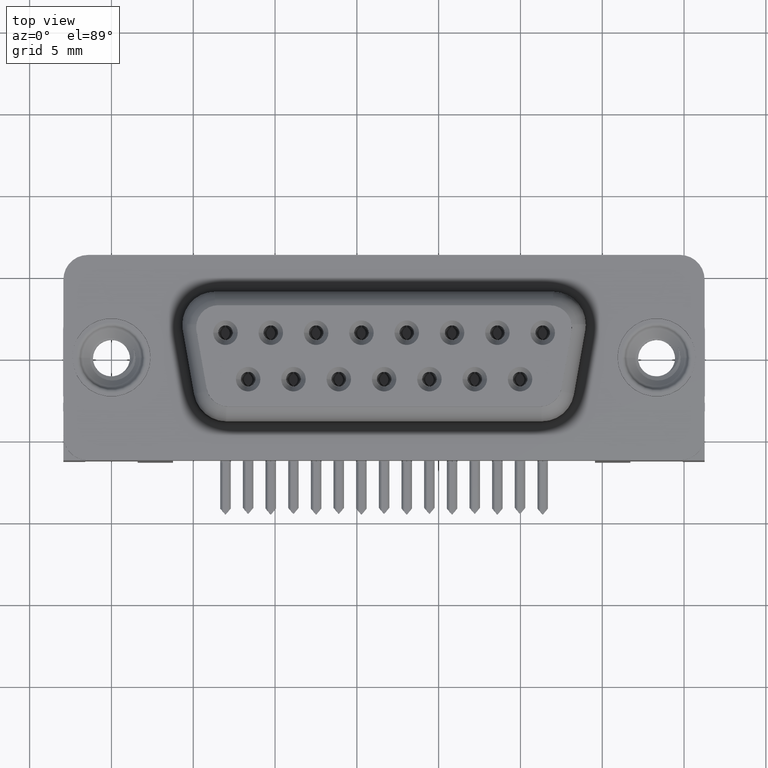
[diagram: clean part render]
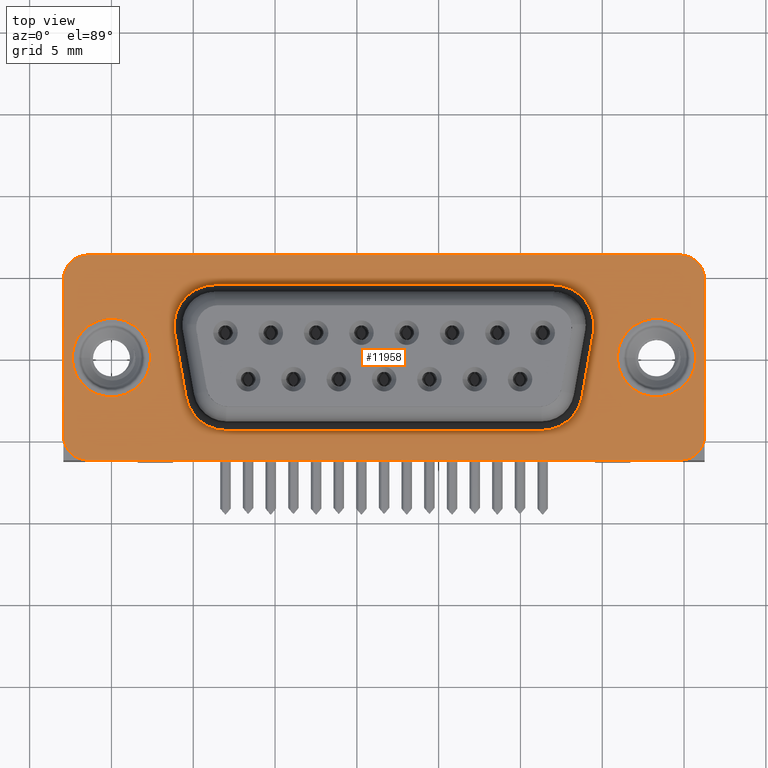
[diagram: same view with one face highlighted and labeled with its STEP entity id]
A machine part, top view. The second image highlights one B-rep face of the part: STEP entity #11958.
In plain terms, the highlighted planar face has unit normal (0, 0, 1).
Its self-contained STEP definition (entity closure, byte-faithful):
#117 = ORIENTED_EDGE ( 'NONE', *, *, #17781, .T. ) ;
#285 = EDGE_CURVE ( 'NONE', #12787, #20505, #21071, .T. ) ;
#343 = DIRECTION ( 'NONE',  ( 0.0000000000000000000, 0.0000000000000000000, 1.000000000000000000 ) ) ;
#436 = EDGE_CURVE ( 'NONE', #16911, #6163, #2549, .T. ) ;
#514 = AXIS2_PLACEMENT_3D ( 'NONE', #21984, #22244, #24148 ) ;
#544 = ORIENTED_EDGE ( 'NONE', *, *, #25452, .F. ) ;
#943 = CARTESIAN_POINT ( 'NONE',  ( 34.75499999999999500, 4.449999999999995700, 0.4000000000000000200 ) ) ;
#983 = EDGE_LOOP ( 'NONE', ( #544, #12791 ) ) ;
#1031 = DIRECTION ( 'NONE',  ( 0.0000000000000000000, 0.0000000000000000000, 1.000000000000000000 ) ) ;
#1152 = CARTESIAN_POINT ( 'NONE',  ( 34.75499999999999500, -4.774999999999999500, 0.4000000000000000200 ) ) ;
#1638 = EDGE_CURVE ( 'NONE', #23014, #23729, #21329, .T. ) ;
#1654 = ORIENTED_EDGE ( 'NONE', *, *, #436, .T. ) ;
#1808 = FACE_BOUND ( 'NONE', #983, .T. ) ;
#1924 = CIRCLE ( 'NONE', #11059, 2.499999999999998700 ) ;
#1981 = CARTESIAN_POINT ( 'NONE',  ( 34.75499999999999500, 4.775000000000001200, 0.4000000000000000200 ) ) ;
#2195 = AXIS2_PLACEMENT_3D ( 'NONE', #8401, #8232, #8045 ) ;
#2264 = CIRCLE ( 'NONE', #12331, 2.399999999999999500 ) ;
#2347 = ORIENTED_EDGE ( 'NONE', *, *, #23802, .T. ) ;
#2412 = CARTESIAN_POINT ( 'NONE',  ( -1.435000000000005800, -4.775000000000003900, 0.4000000000000000200 ) ) ;
#2468 = CARTESIAN_POINT ( 'NONE',  ( 6.330000000000000100, 4.450000000000001100, 0.4000000000000000200 ) ) ;
#2546 = EDGE_LOOP ( 'NONE', ( #23458, #11189, #12157, #24982, #17222, #23810, #19199, #11073 ) ) ;
#2549 = CIRCLE ( 'NONE', #14395, 2.499999999999998700 ) ;
#2567 = DIRECTION ( 'NONE',  ( -1.000000000000000000, 0.0000000000000000000, 0.0000000000000000000 ) ) ;
#2650 = DIRECTION ( 'NONE',  ( 0.0000000000000000000, 0.0000000000000000000, 1.000000000000000000 ) ) ;
#2764 = CARTESIAN_POINT ( 'NONE',  ( -1.435000000000005800, 6.274999999999994100, 0.4000000000000000200 ) ) ;
#2841 = ORIENTED_EDGE ( 'NONE', *, *, #21365, .T. ) ;
#2896 = CARTESIAN_POINT ( 'NONE',  ( 26.30232477523700800, -4.450000000000006400, 0.4000000000000000200 ) ) ;
#2983 = AXIS2_PLACEMENT_3D ( 'NONE', #3131, #14338, #20939 ) ;
#3027 = CIRCLE ( 'NONE', #24147, 1.499999999999996900 ) ;
#3050 = VECTOR ( 'NONE', #13448, 1000.000000000000000 ) ;
#3131 = CARTESIAN_POINT ( 'NONE',  ( -1.435000000000005800, 4.774999999999996800, 0.4000000000000000200 ) ) ;
#3137 = DIRECTION ( 'NONE',  ( 1.000000000000000000, 0.0000000000000000000, 0.0000000000000000000 ) ) ;
#3224 = EDGE_CURVE ( 'NONE', #9956, #23014, #13076, .T. ) ;
#3316 = EDGE_CURVE ( 'NONE', #23909, #16165, #16543, .T. ) ;
#3386 = EDGE_CURVE ( 'NONE', #4770, #5014, #25894, .T. ) ;
#3406 = AXIS2_PLACEMENT_3D ( 'NONE', #12330, #343, #14355 ) ;
#3512 = CARTESIAN_POINT ( 'NONE',  ( -2.935000000000000100, 4.774999999999996800, 0.4000000000000000200 ) ) ;
#3847 = EDGE_CURVE ( 'NONE', #22798, #18126, #3027, .T. ) ;
#3867 = CARTESIAN_POINT ( 'NONE',  ( 28.76434415776753200, -2.384120444167313800, 0.4000000000000000200 ) ) ;
#3939 = EDGE_CURVE ( 'NONE', #16165, #23909, #18393, .T. ) ;
#4001 = DIRECTION ( 'NONE',  ( 1.000000000000000000, 0.0000000000000000000, 0.0000000000000000000 ) ) ;
#4181 = CARTESIAN_POINT ( 'NONE',  ( 34.75499999999999500, 4.775000000000001200, 0.4000000000000000200 ) ) ;
#4191 = ORIENTED_EDGE ( 'NONE', *, *, #21282, .T. ) ;
#4200 = CARTESIAN_POINT ( 'NONE',  ( 30.16926623477670300, 5.583588589154651100, 0.4000000000000000200 ) ) ;
#4264 = ORIENTED_EDGE ( 'NONE', *, *, #7704, .T. ) ;
#4770 = VERTEX_POINT ( 'NONE', #13501 ) ;
#5014 = VERTEX_POINT ( 'NONE', #6088 ) ;
#5183 = ORIENTED_EDGE ( 'NONE', *, *, #3316, .F. ) ;
#5458 = CARTESIAN_POINT ( 'NONE',  ( 3.867980617469476600, 1.515879555832690700, 0.4000000000000000200 ) ) ;
#5658 = AXIS2_PLACEMENT_3D ( 'NONE', #6154, #20184, #8199 ) ;
#5836 = VECTOR ( 'NONE', #11999, 1000.000000000000000 ) ;
#5969 = CARTESIAN_POINT ( 'NONE',  ( 30.92000000000000200, 6.414699933933836200E-015, 0.4000000000000000200 ) ) ;
#6088 = CARTESIAN_POINT ( 'NONE',  ( 36.25499999999999500, -4.774999999999999500, 0.4000000000000000200 ) ) ;
#6154 = CARTESIAN_POINT ( 'NONE',  ( 7.017675224762986600, -1.950000000000002200, 0.3999999999999999700 ) ) ;
#6163 = VERTEX_POINT ( 'NONE', #20709 ) ;
#6188 = CARTESIAN_POINT ( 'NONE',  ( 34.75499999999999500, 6.275000000000002100, 0.4000000000000000200 ) ) ;
#6230 = CIRCLE ( 'NONE', #16164, 1.500000000000001300 ) ;
#6507 = FACE_OUTER_BOUND ( 'NONE', #2546, .T. ) ;
#6616 = EDGE_CURVE ( 'NONE', #5014, #8657, #8591, .T. ) ;
#6980 = CARTESIAN_POINT ( 'NONE',  ( 26.30232477523700800, -1.950000000000005500, 0.3999999999999999700 ) ) ;
#7419 = VERTEX_POINT ( 'NONE', #13331 ) ;
#7704 = EDGE_CURVE ( 'NONE', #20505, #7419, #10754, .T. ) ;
#7794 = PLANE ( 'NONE',  #10267 ) ;
#8045 = DIRECTION ( 'NONE',  ( 1.000000000000000000, 0.0000000000000000000, 0.0000000000000000000 ) ) ;
#8139 = CARTESIAN_POINT ( 'NONE',  ( 26.98999999999999500, 1.949999999999996000, 0.3999999999999999700 ) ) ;
#8199 = DIRECTION ( 'NONE',  ( 1.000000000000000000, 8.673617379884037400E-016, 0.0000000000000000000 ) ) ;
#8232 = DIRECTION ( 'NONE',  ( 0.0000000000000000000, 0.0000000000000000000, 1.000000000000000000 ) ) ;
#8244 = DIRECTION ( 'NONE',  ( 1.000000000000000000, 0.0000000000000000000, -0.0000000000000000000 ) ) ;
#8401 = CARTESIAN_POINT ( 'NONE',  ( 0.0000000000000000000, 0.0000000000000000000, 0.4000000000000000200 ) ) ;
#8572 = DIRECTION ( 'NONE',  ( -0.0000000000000000000, -0.0000000000000000000, -1.000000000000000000 ) ) ;
#8591 = LINE ( 'NONE', #12342, #23894 ) ;
#8657 = VERTEX_POINT ( 'NONE', #19577 ) ;
#8762 = VERTEX_POINT ( 'NONE', #3867 ) ;
#9010 = DIRECTION ( 'NONE',  ( 1.000000000000000000, 8.673617379884027600E-016, 0.0000000000000000000 ) ) ;
#9013 = ORIENTED_EDGE ( 'NONE', *, *, #3939, .F. ) ;
#9613 = ORIENTED_EDGE ( 'NONE', *, *, #285, .T. ) ;
#9819 = DIRECTION ( 'NONE',  ( -0.0000000000000000000, -0.0000000000000000000, -1.000000000000000000 ) ) ;
#9907 = EDGE_CURVE ( 'NONE', #18126, #4770, #25670, .T. ) ;
#9956 = VERTEX_POINT ( 'NONE', #6188 ) ;
#9975 = CARTESIAN_POINT ( 'NONE',  ( -2.935000000000002700, -4.775000000000003900, 0.4000000000000000200 ) ) ;
#10125 = DIRECTION ( 'NONE',  ( 1.000000000000000000, 1.198344484648250400E-016, -0.0000000000000000000 ) ) ;
#10257 = LINE ( 'NONE', #943, #20923 ) ;
#10267 = AXIS2_PLACEMENT_3D ( 'NONE', #4181, #20228, #8244 ) ;
#10581 = CARTESIAN_POINT ( 'NONE',  ( 26.98999999999999500, 1.949999999999996000, 0.3999999999999999700 ) ) ;
#10754 = CIRCLE ( 'NONE', #5658, 2.499999999999999600 ) ;
#11059 = AXIS2_PLACEMENT_3D ( 'NONE', #10581, #24559, #12588 ) ;
#11073 = ORIENTED_EDGE ( 'NONE', *, *, #6616, .T. ) ;
#11152 = LINE ( 'NONE', #23978, #5836 ) ;
#11189 = ORIENTED_EDGE ( 'NONE', *, *, #3224, .T. ) ;
#11749 = CARTESIAN_POINT ( 'NONE',  ( 29.48999999999999500, 1.949999999999996000, 0.3999999999999998600 ) ) ;
#11827 = FACE_BOUND ( 'NONE', #23590, .T. ) ;
#11925 = DIRECTION ( 'NONE',  ( -0.1736481776669238600, 0.9848077530122092400, -0.0000000000000000000 ) ) ;
#11958 = ADVANCED_FACE ( 'NONE', ( #22498, #1808, #11827, #6507 ), #7794, .T. ) ;
#11997 = CIRCLE ( 'NONE', #19793, 2.500000000000002200 ) ;
#11999 = DIRECTION ( 'NONE',  ( -0.0000000000000000000, -1.000000000000000000, -0.0000000000000000000 ) ) ;
#12157 = ORIENTED_EDGE ( 'NONE', *, *, #1638, .T. ) ;
#12265 = EDGE_CURVE ( 'NONE', #20933, #14469, #10257, .T. ) ;
#12312 = DIRECTION ( 'NONE',  ( -1.000000000000000000, 2.698607726476679800E-016, -0.0000000000000000000 ) ) ;
#12330 = CARTESIAN_POINT ( 'NONE',  ( 33.32000000000000000, 6.120784702138471700E-015, 0.4000000000000000200 ) ) ;
#12331 = AXIS2_PLACEMENT_3D ( 'NONE', #12989, #1031, #15029 ) ;
#12342 = CARTESIAN_POINT ( 'NONE',  ( 36.25499999999999500, -4.774999999999999500, 0.4000000000000000200 ) ) ;
#12588 = DIRECTION ( 'NONE',  ( 1.000000000000000000, 0.0000000000000000000, 0.0000000000000000000 ) ) ;
#12787 = VERTEX_POINT ( 'NONE', #2896 ) ;
#12791 = ORIENTED_EDGE ( 'NONE', *, *, #15936, .F. ) ;
#12909 = DIRECTION ( 'NONE',  ( 1.000000000000000000, -1.679306365902039600E-016, -0.0000000000000000000 ) ) ;
#12989 = CARTESIAN_POINT ( 'NONE',  ( 33.32000000000000000, 6.120784702138471700E-015, 0.4000000000000000200 ) ) ;
#13044 = EDGE_CURVE ( 'NONE', #23729, #22798, #11152, .T. ) ;
#13057 = VERTEX_POINT ( 'NONE', #5969 ) ;
#13076 = LINE ( 'NONE', #15487, #3050 ) ;
#13331 = CARTESIAN_POINT ( 'NONE',  ( 4.555655842232464000, -2.384120444167311600, 0.4000000000000000200 ) ) ;
#13448 = DIRECTION ( 'NONE',  ( -1.000000000000000000, -1.438013381577900300E-016, 0.0000000000000000000 ) ) ;
#13501 = CARTESIAN_POINT ( 'NONE',  ( 34.75499999999999500, -6.275000000000000400, 0.4000000000000000200 ) ) ;
#14338 = DIRECTION ( 'NONE',  ( 0.0000000000000000000, 0.0000000000000000000, 1.000000000000000000 ) ) ;
#14355 = DIRECTION ( 'NONE',  ( 1.000000000000000000, 0.0000000000000000000, 0.0000000000000000000 ) ) ;
#14395 = AXIS2_PLACEMENT_3D ( 'NONE', #8139, #8572, #14801 ) ;
#14469 = VERTEX_POINT ( 'NONE', #15974 ) ;
#14483 = VECTOR ( 'NONE', #12312, 1000.000000000000000 ) ;
#14801 = DIRECTION ( 'NONE',  ( 1.000000000000000000, 0.0000000000000000000, 0.0000000000000000000 ) ) ;
#14968 = VERTEX_POINT ( 'NONE', #5458 ) ;
#15029 = DIRECTION ( 'NONE',  ( 1.000000000000000000, 0.0000000000000000000, 0.0000000000000000000 ) ) ;
#15055 = VECTOR ( 'NONE', #10125, 1000.000000000000000 ) ;
#15276 = AXIS2_PLACEMENT_3D ( 'NONE', #1152, #25086, #3137 ) ;
#15487 = CARTESIAN_POINT ( 'NONE',  ( 34.75499999999999500, 6.275000000000002100, 0.4000000000000000200 ) ) ;
#15936 = EDGE_CURVE ( 'NONE', #13057, #23582, #2264, .T. ) ;
#15974 = CARTESIAN_POINT ( 'NONE',  ( 26.98999999999999500, 4.449999999999997500, 0.4000000000000000200 ) ) ;
#15986 = DIRECTION ( 'NONE',  ( 0.0000000000000000000, 0.0000000000000000000, 1.000000000000000000 ) ) ;
#16164 = AXIS2_PLACEMENT_3D ( 'NONE', #1981, #15986, #4001 ) ;
#16165 = VERTEX_POINT ( 'NONE', #25397 ) ;
#16211 = DIRECTION ( 'NONE',  ( -0.1736481776669232300, -0.9848077530122093500, 0.0000000000000000000 ) ) ;
#16543 = CIRCLE ( 'NONE', #514, 2.400000000000000400 ) ;
#16544 = CIRCLE ( 'NONE', #3406, 2.399999999999999500 ) ;
#16911 = VERTEX_POINT ( 'NONE', #11749 ) ;
#17018 = CARTESIAN_POINT ( 'NONE',  ( -1.435000000000005600, -6.275000000000003900, 0.4000000000000000200 ) ) ;
#17126 = CARTESIAN_POINT ( 'NONE',  ( 35.71999999999999900, 6.120784702138471700E-015, 0.4000000000000000200 ) ) ;
#17222 = ORIENTED_EDGE ( 'NONE', *, *, #3847, .T. ) ;
#17327 = ORIENTED_EDGE ( 'NONE', *, *, #20247, .T. ) ;
#17781 = EDGE_CURVE ( 'NONE', #7419, #14968, #20262, .T. ) ;
#18095 = CARTESIAN_POINT ( 'NONE',  ( 34.75499999999999500, -6.274999999999999500, 0.4000000000000000200 ) ) ;
#18126 = VERTEX_POINT ( 'NONE', #17018 ) ;
#18393 = CIRCLE ( 'NONE', #2195, 2.400000000000000400 ) ;
#19199 = ORIENTED_EDGE ( 'NONE', *, *, #3386, .T. ) ;
#19577 = CARTESIAN_POINT ( 'NONE',  ( 36.25499999999999500, 4.775000000000001200, 0.4000000000000000200 ) ) ;
#19793 = AXIS2_PLACEMENT_3D ( 'NONE', #6980, #21006, #9010 ) ;
#19916 = CARTESIAN_POINT ( 'NONE',  ( 4.241995792102201800, -0.6052659043230962400, 0.4000000000000000200 ) ) ;
#20184 = DIRECTION ( 'NONE',  ( -0.0000000000000000000, -0.0000000000000000000, -1.000000000000000000 ) ) ;
#20228 = DIRECTION ( 'NONE',  ( 0.0000000000000000000, 0.0000000000000000000, 1.000000000000000000 ) ) ;
#20247 = EDGE_CURVE ( 'NONE', #8762, #12787, #11997, .T. ) ;
#20262 = LINE ( 'NONE', #19916, #24296 ) ;
#20505 = VERTEX_POINT ( 'NONE', #20732 ) ;
#20709 = CARTESIAN_POINT ( 'NONE',  ( 29.45201938253051900, 1.515879555832686500, 0.4000000000000000200 ) ) ;
#20732 = CARTESIAN_POINT ( 'NONE',  ( 7.017675224762986600, -4.450000000000001100, 0.4000000000000000200 ) ) ;
#20923 = VECTOR ( 'NONE', #12909, 1000.000000000000000 ) ;
#20933 = VERTEX_POINT ( 'NONE', #2468 ) ;
#20939 = DIRECTION ( 'NONE',  ( 1.000000000000000000, 0.0000000000000000000, 0.0000000000000000000 ) ) ;
#20997 = CIRCLE ( 'NONE', #21206, 2.500000000000001300 ) ;
#21006 = DIRECTION ( 'NONE',  ( -0.0000000000000000000, -0.0000000000000000000, -1.000000000000000000 ) ) ;
#21071 = LINE ( 'NONE', #22730, #14483 ) ;
#21206 = AXIS2_PLACEMENT_3D ( 'NONE', #21824, #9819, #23809 ) ;
#21282 = EDGE_CURVE ( 'NONE', #6163, #8762, #25704, .T. ) ;
#21326 = ORIENTED_EDGE ( 'NONE', *, *, #12265, .T. ) ;
#21329 = CIRCLE ( 'NONE', #2983, 1.499999999999996900 ) ;
#21365 = EDGE_CURVE ( 'NONE', #14469, #16911, #1924, .T. ) ;
#21824 = CARTESIAN_POINT ( 'NONE',  ( 6.330000000000000100, 1.949999999999999700, 0.3999999999999999700 ) ) ;
#21984 = CARTESIAN_POINT ( 'NONE',  ( 0.0000000000000000000, 0.0000000000000000000, 0.4000000000000000200 ) ) ;
#22244 = DIRECTION ( 'NONE',  ( 0.0000000000000000000, 0.0000000000000000000, 1.000000000000000000 ) ) ;
#22325 = DIRECTION ( 'NONE',  ( 0.0000000000000000000, 1.000000000000000000, 0.0000000000000000000 ) ) ;
#22498 = FACE_BOUND ( 'NONE', #25066, .T. ) ;
#22730 = CARTESIAN_POINT ( 'NONE',  ( 34.75499999999999500, -4.450000000000008200, 0.4000000000000000200 ) ) ;
#22798 = VERTEX_POINT ( 'NONE', #9975 ) ;
#23014 = VERTEX_POINT ( 'NONE', #2764 ) ;
#23458 = ORIENTED_EDGE ( 'NONE', *, *, #24491, .T. ) ;
#23582 = VERTEX_POINT ( 'NONE', #17126 ) ;
#23590 = EDGE_LOOP ( 'NONE', ( #21326, #2841, #1654, #4191, #17327, #9613, #4264, #117, #2347 ) ) ;
#23729 = VERTEX_POINT ( 'NONE', #3512 ) ;
#23802 = EDGE_CURVE ( 'NONE', #14968, #20933, #20997, .T. ) ;
#23809 = DIRECTION ( 'NONE',  ( 1.000000000000000000, 1.734723475976806100E-015, 0.0000000000000000000 ) ) ;
#23810 = ORIENTED_EDGE ( 'NONE', *, *, #9907, .T. ) ;
#23894 = VECTOR ( 'NONE', #22325, 1000.000000000000000 ) ;
#23909 = VERTEX_POINT ( 'NONE', #24249 ) ;
#23978 = CARTESIAN_POINT ( 'NONE',  ( -2.935000000000000100, -4.775000000000003900, 0.4000000000000000200 ) ) ;
#24147 = AXIS2_PLACEMENT_3D ( 'NONE', #2412, #2650, #2567 ) ;
#24148 = DIRECTION ( 'NONE',  ( 1.000000000000000000, 0.0000000000000000000, 0.0000000000000000000 ) ) ;
#24249 = CARTESIAN_POINT ( 'NONE',  ( 2.400000000000000400, 0.0000000000000000000, 0.4000000000000000200 ) ) ;
#24296 = VECTOR ( 'NONE', #11925, 1000.000000000000000 ) ;
#24463 = VECTOR ( 'NONE', #16211, 1000.000000000000000 ) ;
#24491 = EDGE_CURVE ( 'NONE', #8657, #9956, #6230, .T. ) ;
#24559 = DIRECTION ( 'NONE',  ( -0.0000000000000000000, -0.0000000000000000000, -1.000000000000000000 ) ) ;
#24982 = ORIENTED_EDGE ( 'NONE', *, *, #13044, .T. ) ;
#25066 = EDGE_LOOP ( 'NONE', ( #5183, #9013 ) ) ;
#25086 = DIRECTION ( 'NONE',  ( 0.0000000000000000000, 0.0000000000000000000, 1.000000000000000000 ) ) ;
#25397 = CARTESIAN_POINT ( 'NONE',  ( -2.400000000000000400, 2.939152317953647600E-016, 0.4000000000000000200 ) ) ;
#25452 = EDGE_CURVE ( 'NONE', #23582, #13057, #16544, .T. ) ;
#25670 = LINE ( 'NONE', #18095, #15055 ) ;
#25704 = LINE ( 'NONE', #4200, #24463 ) ;
#25894 = CIRCLE ( 'NONE', #15276, 1.500000000000001300 ) ;